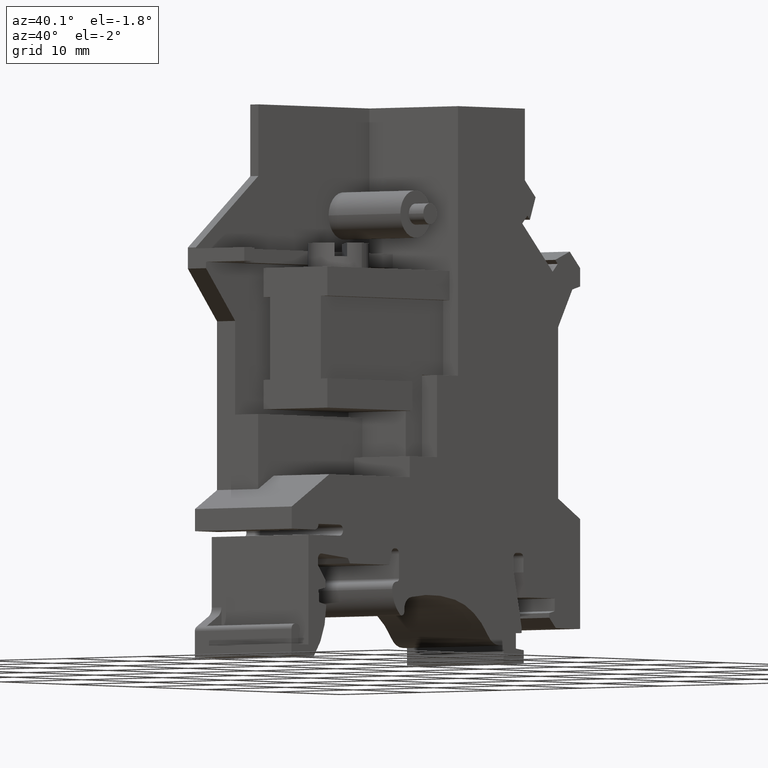
[diagram: clean part render]
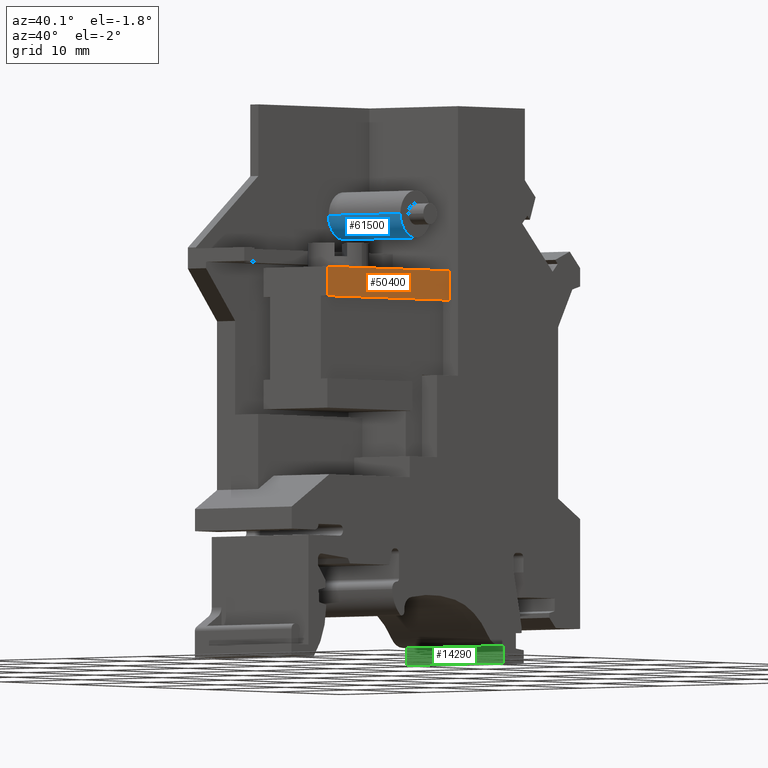
[diagram: same view with three faces highlighted in distinct colors, each labeled with its STEP entity id]
A machine part, auxiliary view with three faces highlighted in distinct colors.
Their STEP definitions:

[orange] entity #50400 — the highlighted planar face has unit normal (-1, 0, 0).
#10700=CARTESIAN_POINT('',(-148.505125039702,148.078997429054,-1.05));
#10710=VERTEX_POINT('',#10700);
#10740=CARTESIAN_POINT('',(-148.505125039702,0.,-1.05000000000005));
#10750=DIRECTION('',(0.,1.,3.0626842058625E-16));
#10760=VECTOR('',#10750,1.);
#10770=LINE('',#10740,#10760);
#10780=CARTESIAN_POINT('',(-148.505125039702,150.861548850787,-1.05));
#10790=VERTEX_POINT('',#10780);
#10800=EDGE_CURVE('',#10710,#10790,#10770,.T.);
#49340=CARTESIAN_POINT('',(-166.505125039702,150.861548850787,-1.05));
#49350=VERTEX_POINT('',#49340);
#49380=CARTESIAN_POINT('',(-166.505125039702,0.,-1.05000000000005));
#49390=DIRECTION('',(0.,1.,3.0626842058625E-16));
#49400=VECTOR('',#49390,1.);
#49410=LINE('',#49380,#49400);
#49420=CARTESIAN_POINT('',(-166.505125039702,148.078997429054,-1.05));
#49430=VERTEX_POINT('',#49420);
#49440=EDGE_CURVE('',#49430,#49350,#49410,.T.);
#49900=CARTESIAN_POINT('',(0.,150.861548850787,-1.05));
#49910=DIRECTION('',(1.,0.,0.));
#49920=VECTOR('',#49910,1.);
#49930=LINE('',#49900,#49920);
#49940=EDGE_CURVE('',#49350,#10790,#49930,.T.);
#50240=CARTESIAN_POINT('',(-166.505125039702,150.361548850787,-1.05));
#50250=DIRECTION('',(0.,3.0626842058625E-16,-1.));
#50260=DIRECTION('',(0.,1.,3.0626842058625E-16));
#50270=AXIS2_PLACEMENT_3D('',#50240,#50250,#50260);
#50280=PLANE('',#50270);
#50290=CARTESIAN_POINT('',(0.,148.078997429054,-1.05));
#50300=DIRECTION('',(1.,0.,0.));
#50310=VECTOR('',#50300,1.);
#50320=LINE('',#50290,#50310);
#50330=EDGE_CURVE('',#49430,#10710,#50320,.T.);
#50340=ORIENTED_EDGE('',*,*,#50330,.T.);
#50350=ORIENTED_EDGE('',*,*,#49440,.F.);
#50360=ORIENTED_EDGE('',*,*,#49940,.F.);
#50370=ORIENTED_EDGE('',*,*,#10800,.T.);
#50380=EDGE_LOOP('',(#50370,#50360,#50350,#50340));
#50390=FACE_OUTER_BOUND('',#50380,.T.);
#50400=ADVANCED_FACE('',(#50390),#50280,.F.);

[blue] entity #61500 — the highlighted cylindrical surface (edge-blend (fillet) strip) has radius 2.25 mm, axis along (1, 0, 0).
#57800=CARTESIAN_POINT('',(-152.255125039702,156.178997429054,-11.));
#57810=DIRECTION('',(0.,0.,1.));
#57820=DIRECTION('',(1.,0.,0.));
#57830=AXIS2_PLACEMENT_3D('',#57800,#57810,#57820);
#57840=CIRCLE('',#57830,2.25);
#57850=CARTESIAN_POINT('',(-150.005125039702,156.178997429054,-11.));
#57860=VERTEX_POINT('',#57850);
#57870=CARTESIAN_POINT('',(-154.505125039702,156.178997429054,-11.));
#57880=VERTEX_POINT('',#57870);
#57910=EDGE_CURVE('',#57880,#57860,#57840,.T.);
#61060=CARTESIAN_POINT('',(-152.255125039702,156.178997429054,-2.1));
#61070=DIRECTION('',(0.,0.,1.));
#61080=DIRECTION('',(1.,0.,0.));
#61090=AXIS2_PLACEMENT_3D('',#61060,#61070,#61080);
#61100=CIRCLE('',#61090,2.25);
#61110=CARTESIAN_POINT('',(-150.005125039702,156.178997429054,-2.1));
#61120=VERTEX_POINT('',#61110);
#61130=CARTESIAN_POINT('',(-154.505125039702,156.178997429054,-2.1));
#61140=VERTEX_POINT('',#61130);
#61170=EDGE_CURVE('',#61140,#61120,#61100,.T.);
#61290=CARTESIAN_POINT('',(-152.255125039702,156.178997429054,-11.));
#61300=DIRECTION('',(0.,0.,1.));
#61310=DIRECTION('',(1.,0.,0.));
#61320=AXIS2_PLACEMENT_3D('',#61290,#61300,#61310);
#61330=CYLINDRICAL_SURFACE('',#61320,2.25);
#61340=CARTESIAN_POINT('',(-150.005125039702,156.178997429054,-11.));
#61350=DIRECTION('',(0.,0.,1.));
#61360=VECTOR('',#61350,1.);
#61370=LINE('',#61340,#61360);
#61380=EDGE_CURVE('',#57860,#61120,#61370,.T.);
#61390=ORIENTED_EDGE('',*,*,#61380,.T.);
#61400=ORIENTED_EDGE('',*,*,#57910,.T.);
#61410=CARTESIAN_POINT('',(-154.505125039702,156.178997429054,-11.));
#61420=DIRECTION('',(0.,0.,1.));
#61430=VECTOR('',#61420,1.);
#61440=LINE('',#61410,#61430);
#61450=EDGE_CURVE('',#57880,#61140,#61440,.T.);
#61460=ORIENTED_EDGE('',*,*,#61450,.F.);
#61470=ORIENTED_EDGE('',*,*,#61170,.F.);
#61480=EDGE_LOOP('',(#61470,#61460,#61400,#61390));
#61490=FACE_OUTER_BOUND('',#61480,.T.);
#61500=ADVANCED_FACE('',(#61490),#61330,.T.);

[green] entity #14290 — the highlighted planar face has unit normal (0, -1, 0).
#4610=CARTESIAN_POINT('',(-141.775125039702,115.428997429054,-12.));
#4620=VERTEX_POINT('',#4610);
#4650=CARTESIAN_POINT('',(-141.775125039702,148.768305429054,-12.));
#4660=DIRECTION('',(0.,-1.,0.));
#4670=VECTOR('',#4660,1.);
#4680=LINE('',#4650,#4670);
#4690=CARTESIAN_POINT('',(-141.775125039702,113.778997429054,-12.));
#4700=VERTEX_POINT('',#4690);
#4710=EDGE_CURVE('',#4620,#4700,#4680,.T.);
#13990=CARTESIAN_POINT('',(-141.775125039702,114.928997429054,0.));
#14000=DIRECTION('',(-1.,0.,0.));
#14010=DIRECTION('',(0.,1.,0.));
#14020=AXIS2_PLACEMENT_3D('',#13990,#14000,#14010);
#14030=PLANE('',#14020);
#14040=CARTESIAN_POINT('',(-141.775125039702,113.778997429054,0.));
#14050=DIRECTION('',(0.,0.,1.));
#14060=VECTOR('',#14050,1.);
#14070=LINE('',#14040,#14060);
#14080=CARTESIAN_POINT('',(-141.775125039702,113.778997429054,0.));
#14090=VERTEX_POINT('',#14080);
#14100=EDGE_CURVE('',#4700,#14090,#14070,.T.);
#14110=ORIENTED_EDGE('',*,*,#14100,.T.);
#14120=ORIENTED_EDGE('',*,*,#4710,.T.);
#14130=CARTESIAN_POINT('',(-141.775125039702,115.428997429054,0.));
#14140=DIRECTION('',(0.,0.,1.));
#14150=VECTOR('',#14140,1.);
#14160=LINE('',#14130,#14150);
#14170=CARTESIAN_POINT('',(-141.775125039702,115.428997429054,0.));
#14180=VERTEX_POINT('',#14170);
#14190=EDGE_CURVE('',#4620,#14180,#14160,.T.);
#14200=ORIENTED_EDGE('',*,*,#14190,.F.);
#14210=CARTESIAN_POINT('',(-141.775125039702,0.,0.));
#14220=DIRECTION('',(0.,1.,0.));
#14230=VECTOR('',#14220,1.);
#14240=LINE('',#14210,#14230);
#14250=EDGE_CURVE('',#14090,#14180,#14240,.T.);
#14260=ORIENTED_EDGE('',*,*,#14250,.T.);
#14270=EDGE_LOOP('',(#14260,#14200,#14120,#14110));
#14280=FACE_OUTER_BOUND('',#14270,.T.);
#14290=ADVANCED_FACE('',(#14280),#14030,.T.);